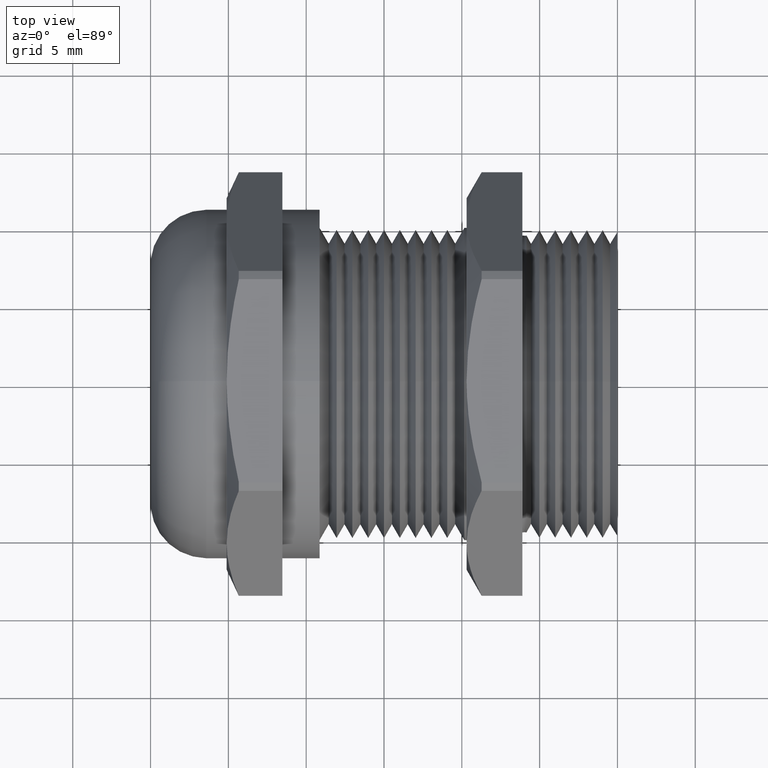
[diagram: clean part render]
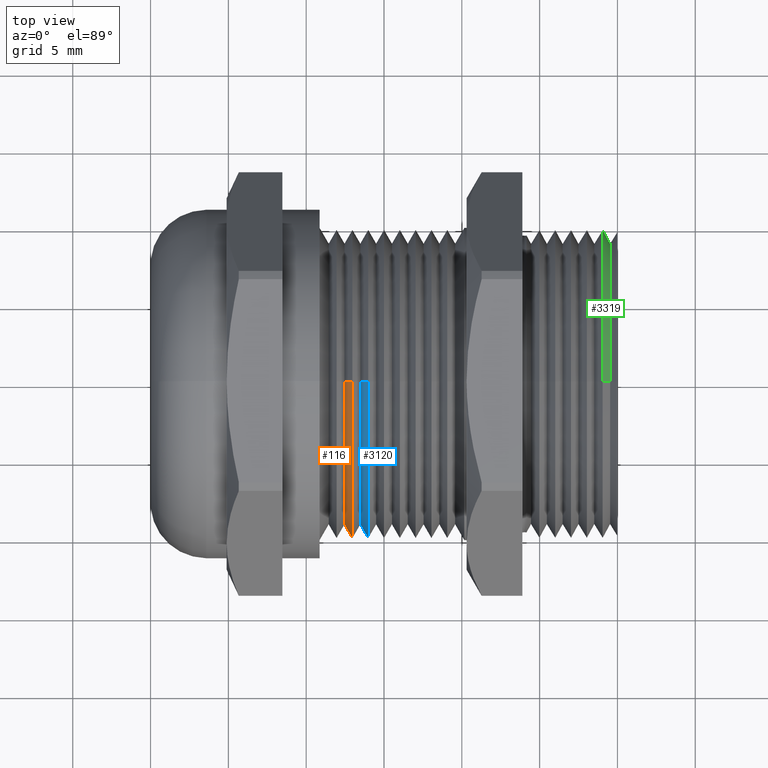
[diagram: same view with three faces highlighted in distinct colors, each labeled with its STEP entity id]
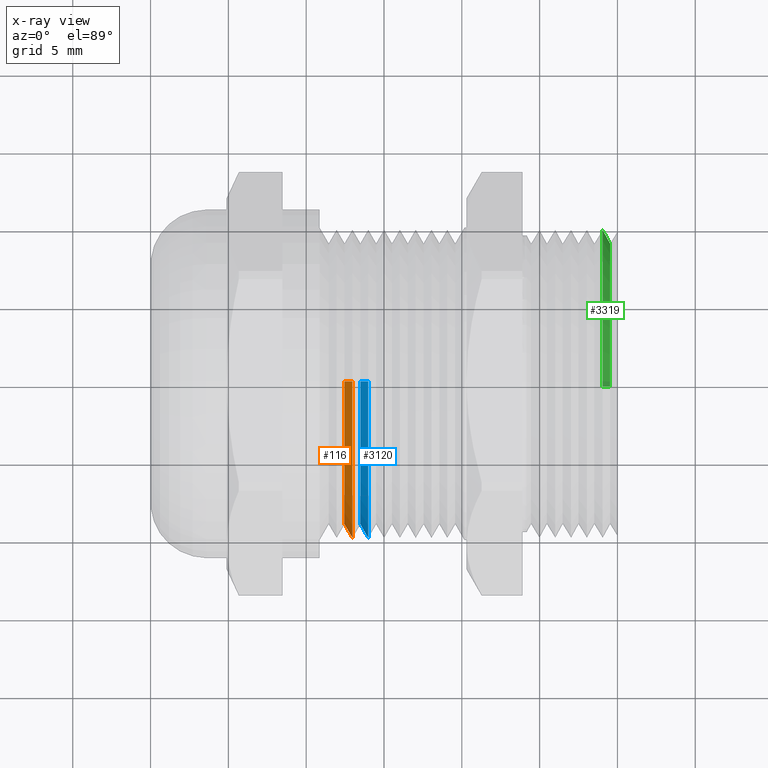
[diagram: x-ray of the same camera — body ghosted, the three highlighted faces saturated]
A machine part, top view with three faces highlighted in distinct colors.
The next image is the same camera in x-ray (body ghosted, the three faces saturated) — at least one of them is partly hidden behind the body in this view.
Their STEP definitions:

[orange] entity #116 — the highlighted conical surface has half-angle 60 deg.
#110 = EDGE_CURVE ( 'NONE', #3466, #3484, #750, .T. ) ;
#111 = ORIENTED_EDGE ( 'NONE', *, *, #110, .T. ) ;
#113 = EDGE_CURVE ( 'NONE', #3454, #3452, #745, .T. ) ;
#114 = ORIENTED_EDGE ( 'NONE', *, *, #267, .T. ) ;
#115 = ORIENTED_EDGE ( 'NONE', *, *, #113, .F. ) ;
#116 = ADVANCED_FACE ( 'NONE', ( #740 ), #739, .T. ) ;
#117 = EDGE_LOOP ( 'NONE', ( #119, #115, #114, #111 ) ) ;
#119 = ORIENTED_EDGE ( 'NONE', *, *, #264, .F. ) ;
#264 = EDGE_CURVE ( 'NONE', #3452, #3484, #1079, .T. ) ;
#267 = EDGE_CURVE ( 'NONE', #3454, #3466, #1070, .T. ) ;
#734 = DIRECTION ( 'NONE',  ( 0.0000000000000000000, 0.0000000000000000000, -1.000000000000000000 ) ) ;
#735 = DIRECTION ( 'NONE',  ( 1.000000000000000000, 0.0000000000000000000, 0.0000000000000000000 ) ) ;
#736 = CARTESIAN_POINT ( 'NONE',  ( -0.09990598923241478200, 0.0000000000000000000, 0.0000000000000000000 ) ) ;
#737 = AXIS2_PLACEMENT_3D ( 'NONE', #736, #735, #734 ) ;
#739 = CONICAL_SURFACE ( 'NONE', #737, 0.3550000000000000400, 1.047197551196603400 ) ;
#740 = FACE_OUTER_BOUND ( 'NONE', #117, .T. ) ;
#741 = DIRECTION ( 'NONE',  ( 0.0000000000000000000, 0.0000000000000000000, 1.000000000000000000 ) ) ;
#742 = DIRECTION ( 'NONE',  ( -1.000000000000000000, 0.0000000000000000000, 0.0000000000000000000 ) ) ;
#743 = CARTESIAN_POINT ( 'NONE',  ( -0.09990598923241478200, 0.0000000000000000000, 0.0000000000000000000 ) ) ;
#744 = AXIS2_PLACEMENT_3D ( 'NONE', #743, #742, #741 ) ;
#745 = CIRCLE ( 'NONE', #744, 0.3550000000000000400 ) ;
#746 = DIRECTION ( 'NONE',  ( 0.0000000000000000000, 0.0000000000000000000, 1.000000000000000000 ) ) ;
#747 = DIRECTION ( 'NONE',  ( -1.000000000000000000, 0.0000000000000000000, 0.0000000000000000000 ) ) ;
#748 = CARTESIAN_POINT ( 'NONE',  ( -0.07990598923241494500, 0.0000000000000000000, 0.0000000000000000000 ) ) ;
#749 = AXIS2_PLACEMENT_3D ( 'NONE', #748, #747, #746 ) ;
#750 = CIRCLE ( 'NONE', #749, 0.3896410161513777500 ) ;
#1067 = DIRECTION ( 'NONE',  ( 0.4999999999999951200, 0.0000000000000000000, -0.8660254037844414800 ) ) ;
#1068 = VECTOR ( 'NONE', #1067, 39.37007874015748100 ) ;
#1069 = CARTESIAN_POINT ( 'NONE',  ( -0.09990598923241478200, 0.0000000000000000000, -0.3550000000000000400 ) ) ;
#1070 = LINE ( 'NONE', #1069, #1068 ) ;
#1071 = DIRECTION ( 'NONE',  ( 0.4999999999999951200, 1.060575238724910200E-016, 0.8660254037844414800 ) ) ;
#1072 = VECTOR ( 'NONE', #1071, 39.37007874015748100 ) ;
#1073 = CARTESIAN_POINT ( 'NONE',  ( -0.09990598923241478200, 4.347496136973104100E-017, 0.3550000000000000400 ) ) ;
#1079 = LINE ( 'NONE', #1073, #1072 ) ;
#2420 = CARTESIAN_POINT ( 'NONE',  ( -0.09990598923241478200, 0.0000000000000000000, -0.3550000000000000400 ) ) ;
#2426 = CARTESIAN_POINT ( 'NONE',  ( -0.09990598923241478200, 4.559611184718086500E-017, 0.3550000000000000400 ) ) ;
#2465 = CARTESIAN_POINT ( 'NONE',  ( -0.07990598923241494500, 0.0000000000000000000, -0.3896410161513777500 ) ) ;
#2490 = CARTESIAN_POINT ( 'NONE',  ( -0.07990598923241494500, 4.771726232463068800E-017, 0.3896410161513777500 ) ) ;
#3452 = VERTEX_POINT ( 'NONE', #2426 ) ;
#3454 = VERTEX_POINT ( 'NONE', #2420 ) ;
#3466 = VERTEX_POINT ( 'NONE', #2465 ) ;
#3484 = VERTEX_POINT ( 'NONE', #2490 ) ;

[blue] entity #3120 — the highlighted conical surface has half-angle 60 deg.
#13 = EDGE_CURVE ( 'NONE', #3464, #3418, #502, .T. ) ;
#14 = ORIENTED_EDGE ( 'NONE', *, *, #300, .F. ) ;
#15 = EDGE_LOOP ( 'NONE', ( #14, #17, #16, #118 ) ) ;
#16 = ORIENTED_EDGE ( 'NONE', *, *, #281, .T. ) ;
#17 = ORIENTED_EDGE ( 'NONE', *, *, #13, .F. ) ;
#118 = ORIENTED_EDGE ( 'NONE', *, *, #120, .T. ) ;
#120 = EDGE_CURVE ( 'NONE', #3493, #3413, #738, .T. ) ;
#281 = EDGE_CURVE ( 'NONE', #3464, #3493, #1109, .T. ) ;
#300 = EDGE_CURVE ( 'NONE', #3418, #3413, #1132, .T. ) ;
#499 = DIRECTION ( 'NONE',  ( 0.0000000000000000000, 0.0000000000000000000, 1.000000000000000000 ) ) ;
#500 = DIRECTION ( 'NONE',  ( -1.000000000000000000, 0.0000000000000000000, 0.0000000000000000000 ) ) ;
#501 = AXIS2_PLACEMENT_3D ( 'NONE', #508, #500, #499 ) ;
#502 = CIRCLE ( 'NONE', #501, 0.3550000000000000400 ) ;
#508 = CARTESIAN_POINT ( 'NONE',  ( -0.05990598923241478200, 0.0000000000000000000, 0.0000000000000000000 ) ) ;
#730 = DIRECTION ( 'NONE',  ( 0.0000000000000000000, 0.0000000000000000000, 1.000000000000000000 ) ) ;
#731 = DIRECTION ( 'NONE',  ( -1.000000000000000000, 0.0000000000000000000, 0.0000000000000000000 ) ) ;
#732 = CARTESIAN_POINT ( 'NONE',  ( -0.03990598923241493000, 0.0000000000000000000, 0.0000000000000000000 ) ) ;
#733 = AXIS2_PLACEMENT_3D ( 'NONE', #732, #731, #730 ) ;
#738 = CIRCLE ( 'NONE', #733, 0.3896410161513777500 ) ;
#1106 = DIRECTION ( 'NONE',  ( 0.4999999999999951200, 0.0000000000000000000, -0.8660254037844414800 ) ) ;
#1107 = VECTOR ( 'NONE', #1106, 39.37007874015748100 ) ;
#1108 = CARTESIAN_POINT ( 'NONE',  ( -0.05990598923241478200, 0.0000000000000000000, -0.3550000000000000400 ) ) ;
#1109 = LINE ( 'NONE', #1108, #1107 ) ;
#1129 = DIRECTION ( 'NONE',  ( 0.4999999999999951200, 1.060575238724910200E-016, 0.8660254037844414800 ) ) ;
#1130 = VECTOR ( 'NONE', #1129, 39.37007874015748100 ) ;
#1131 = CARTESIAN_POINT ( 'NONE',  ( -0.05990598923241478200, 4.347496136973104100E-017, 0.3550000000000000400 ) ) ;
#1132 = LINE ( 'NONE', #1131, #1130 ) ;
#1719 = FACE_OUTER_BOUND ( 'NONE', #15, .T. ) ;
#1773 = DIRECTION ( 'NONE',  ( 0.0000000000000000000, 0.0000000000000000000, -1.000000000000000000 ) ) ;
#1774 = DIRECTION ( 'NONE',  ( 1.000000000000000000, 0.0000000000000000000, 0.0000000000000000000 ) ) ;
#1775 = CARTESIAN_POINT ( 'NONE',  ( -0.05990598923241478200, 0.0000000000000000000, 0.0000000000000000000 ) ) ;
#1776 = AXIS2_PLACEMENT_3D ( 'NONE', #1775, #1774, #1773 ) ;
#1778 = CONICAL_SURFACE ( 'NONE', #1776, 0.3550000000000000400, 1.047197551196603400 ) ;
#2362 = CARTESIAN_POINT ( 'NONE',  ( -0.05990598923241478200, 4.559611184718086500E-017, 0.3550000000000000400 ) ) ;
#2373 = CARTESIAN_POINT ( 'NONE',  ( -0.03990598923241493000, 4.771726232463069400E-017, 0.3896410161513778100 ) ) ;
#2466 = CARTESIAN_POINT ( 'NONE',  ( -0.05990598923241478200, 0.0000000000000000000, -0.3550000000000000400 ) ) ;
#2533 = CARTESIAN_POINT ( 'NONE',  ( -0.03990598923241493000, 0.0000000000000000000, -0.3896410161513778100 ) ) ;
#3120 = ADVANCED_FACE ( 'NONE', ( #1719 ), #1778, .T. ) ;
#3413 = VERTEX_POINT ( 'NONE', #2373 ) ;
#3418 = VERTEX_POINT ( 'NONE', #2362 ) ;
#3464 = VERTEX_POINT ( 'NONE', #2466 ) ;
#3493 = VERTEX_POINT ( 'NONE', #2533 ) ;

[green] entity #3319 — the highlighted conical surface has half-angle 61.5 deg.
#2007 = DIRECTION ( 'NONE',  ( -0.4771587602596011900, 0.0000000000000000000, 0.8788171126619692700 ) ) ;
#2008 = VECTOR ( 'NONE', #2007, 39.37007874015748100 ) ;
#2009 = CARTESIAN_POINT ( 'NONE',  ( 0.5499999999999998200, 0.0000000000000000000, 0.3950000000000000200 ) ) ;
#2010 = LINE ( 'NONE', #2009, #2008 ) ;
#2043 = CARTESIAN_POINT ( 'NONE',  ( 0.5532476662315719600, 4.764103133556988900E-017, 0.3890185428871363900 ) ) ;
#2044 = CARTESIAN_POINT ( 'NONE',  ( 0.5532476662315719600, 0.0000000000000000000, -0.3890185428871363900 ) ) ;
#2045 = DIRECTION ( 'NONE',  ( -0.4771587602596011900, 1.076240564057399600E-016, -0.8788171126619692700 ) ) ;
#2046 = VECTOR ( 'NONE', #2045, 39.37007874015748100 ) ;
#2047 = CARTESIAN_POINT ( 'NONE',  ( 0.5499999999999998200, 4.837354856632045600E-017, -0.3950000000000000200 ) ) ;
#2048 = LINE ( 'NONE', #2047, #2046 ) ;
#2049 = CARTESIAN_POINT ( 'NONE',  ( 0.5720390190945652300, 0.0000000000000000000, -0.3544091762748932100 ) ) ;
#2050 = DIRECTION ( 'NONE',  ( 0.0000000000000000000, 0.0000000000000000000, 1.000000000000000000 ) ) ;
#2051 = DIRECTION ( 'NONE',  ( -1.000000000000000000, 0.0000000000000000000, 0.0000000000000000000 ) ) ;
#2052 = CARTESIAN_POINT ( 'NONE',  ( 0.5720390190945652300, 0.0000000000000000000, 1.243131120897755100E-017 ) ) ;
#2053 = AXIS2_PLACEMENT_3D ( 'NONE', #2052, #2051, #2050 ) ;
#2054 = CIRCLE ( 'NONE', #2053, 0.3544091762748932100 ) ;
#2055 = DIRECTION ( 'NONE',  ( 0.0000000000000000000, 0.0000000000000000000, 1.000000000000000000 ) ) ;
#2056 = DIRECTION ( 'NONE',  ( -1.000000000000000000, 0.0000000000000000000, 0.0000000000000000000 ) ) ;
#2057 = CARTESIAN_POINT ( 'NONE',  ( 0.5532476662315719600, 0.0000000000000000000, 9.945048967182041100E-018 ) ) ;
#2058 = AXIS2_PLACEMENT_3D ( 'NONE', #2057, #2056, #2055 ) ;
#2059 = CIRCLE ( 'NONE', #2058, 0.3890185428871363900 ) ;
#2124 = CARTESIAN_POINT ( 'NONE',  ( 0.5720390190945652300, 4.519730521238032400E-017, 0.3544091762748932100 ) ) ;
#2125 = DIRECTION ( 'NONE',  ( 0.0000000000000000000, 0.0000000000000000000, 1.000000000000000000 ) ) ;
#2126 = DIRECTION ( 'NONE',  ( -1.000000000000000000, 0.0000000000000000000, 0.0000000000000000000 ) ) ;
#2127 = CARTESIAN_POINT ( 'NONE',  ( 0.5499999999999998200, 0.0000000000000000000, 1.243131120897755100E-017 ) ) ;
#2128 = AXIS2_PLACEMENT_3D ( 'NONE', #2127, #2126, #2125 ) ;
#2129 = CONICAL_SURFACE ( 'NONE', #2128, 0.3950000000000000200, 1.073377489976520900 ) ;
#2130 = FACE_OUTER_BOUND ( 'NONE', #3320, .T. ) ;
#3256 = ORIENTED_EDGE ( 'NONE', *, *, #3257, .F. ) ;
#3257 = EDGE_CURVE ( 'NONE', #3322, #3272, #2010, .T. ) ;
#3264 = ORIENTED_EDGE ( 'NONE', *, *, #3265, .F. ) ;
#3265 = EDGE_CURVE ( 'NONE', #3272, #3271, #2059, .T. ) ;
#3267 = EDGE_CURVE ( 'NONE', #3322, #3268, #2054, .T. ) ;
#3268 = VERTEX_POINT ( 'NONE', #2049 ) ;
#3269 = ORIENTED_EDGE ( 'NONE', *, *, #3270, .T. ) ;
#3270 = EDGE_CURVE ( 'NONE', #3268, #3271, #2048, .T. ) ;
#3271 = VERTEX_POINT ( 'NONE', #2044 ) ;
#3272 = VERTEX_POINT ( 'NONE', #2043 ) ;
#3319 = ADVANCED_FACE ( 'NONE', ( #2130 ), #2129, .T. ) ;
#3320 = EDGE_LOOP ( 'NONE', ( #3321, #3269, #3264, #3256 ) ) ;
#3321 = ORIENTED_EDGE ( 'NONE', *, *, #3267, .T. ) ;
#3322 = VERTEX_POINT ( 'NONE', #2124 ) ;